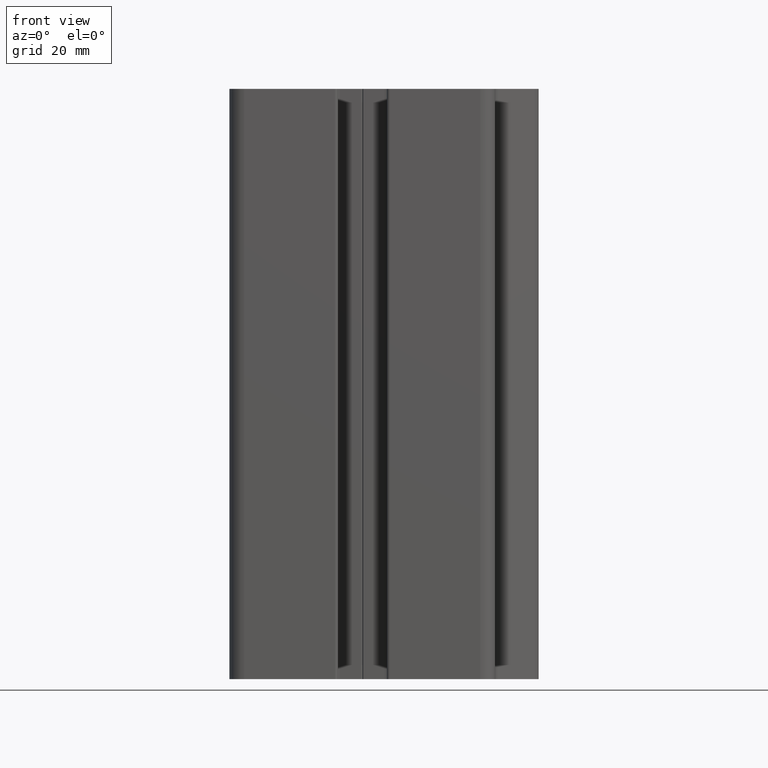
[diagram: clean part render]
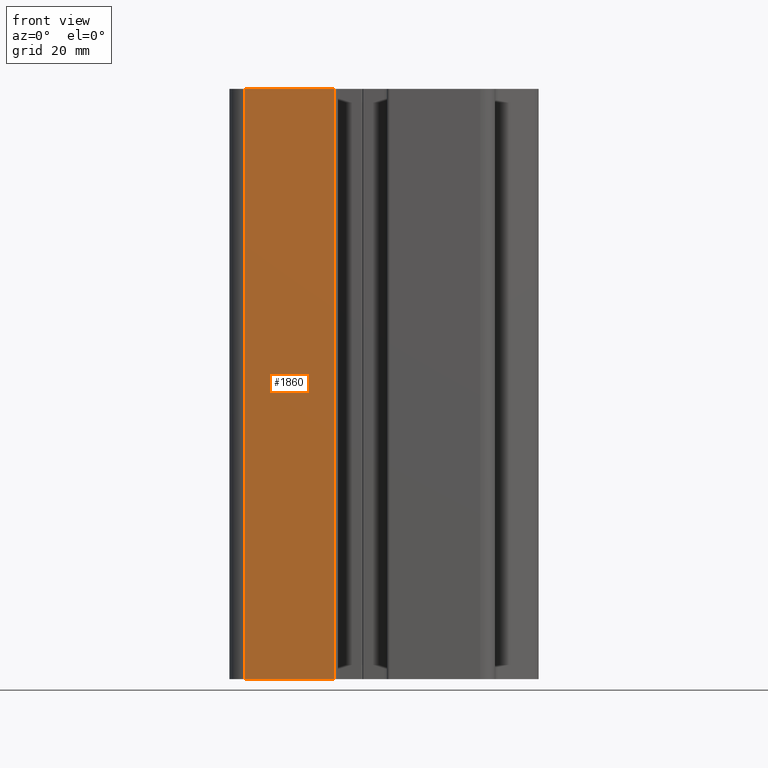
[diagram: same view with one face highlighted and labeled with its STEP entity id]
A machine part, front view. The second image highlights one B-rep face of the part: STEP entity #1860.
In plain terms, the highlighted planar face has unit normal (0, -1, 0).
Its self-contained STEP definition (entity closure, byte-faithful):
#238=FACE_OUTER_BOUND('',#333,.T.);
#333=EDGE_LOOP('',(#1482,#1483,#1484,#1485));
#506=LINE('',#3070,#689);
#507=LINE('',#3074,#690);
#508=LINE('',#3076,#691);
#509=LINE('',#3077,#692);
#689=VECTOR('',#2515,100.);
#690=VECTOR('',#2520,15.35);
#691=VECTOR('',#2521,100.);
#692=VECTOR('',#2522,15.35);
#877=VERTEX_POINT('',#3067);
#878=VERTEX_POINT('',#3069);
#879=VERTEX_POINT('',#3073);
#880=VERTEX_POINT('',#3075);
#1133=EDGE_CURVE('',#877,#878,#506,.T.);
#1135=EDGE_CURVE('',#877,#879,#507,.T.);
#1136=EDGE_CURVE('',#879,#880,#508,.T.);
#1137=EDGE_CURVE('',#878,#880,#509,.T.);
#1482=ORIENTED_EDGE('',*,*,#1135,.T.);
#1483=ORIENTED_EDGE('',*,*,#1136,.T.);
#1484=ORIENTED_EDGE('',*,*,#1137,.F.);
#1485=ORIENTED_EDGE('',*,*,#1133,.F.);
#1773=PLANE('',#2034);
#1860=ADVANCED_FACE('',(#238),#1773,.T.);
#2034=AXIS2_PLACEMENT_3D('',#3072,#2518,#2519);
#2515=DIRECTION('',(0.,0.,-1.));
#2518=DIRECTION('center_axis',(0.,-1.,0.));
#2519=DIRECTION('ref_axis',(1.,0.,0.));
#2520=DIRECTION('',(-1.,0.,0.));
#2521=DIRECTION('',(0.,0.,-1.));
#2522=DIRECTION('',(-1.,0.,0.));
#3067=CARTESIAN_POINT('',(-4.65,-21.23,100.));
#3069=CARTESIAN_POINT('',(-4.65,-21.23,0.));
#3070=CARTESIAN_POINT('',(-4.65,-21.23,0.));
#3072=CARTESIAN_POINT('Origin',(-20.,-21.23,0.));
#3073=CARTESIAN_POINT('',(-20.,-21.23,100.));
#3074=CARTESIAN_POINT('',(-8.15343859116125,-21.23,100.));
#3075=CARTESIAN_POINT('',(-20.,-21.23,0.));
#3076=CARTESIAN_POINT('',(-20.,-21.23,0.));
#3077=CARTESIAN_POINT('',(-8.15343859116125,-21.23,0.));